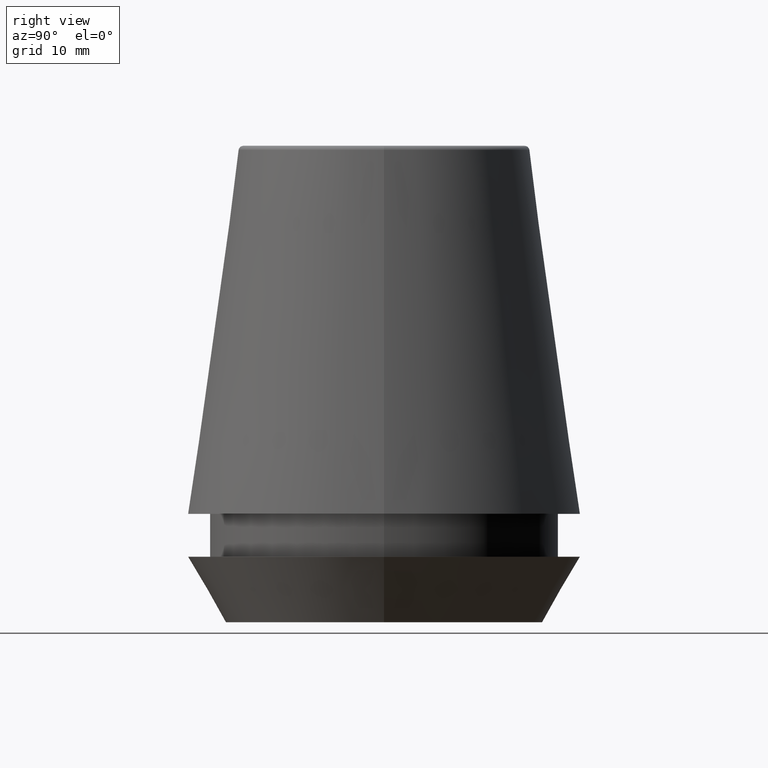
[diagram: clean part render]
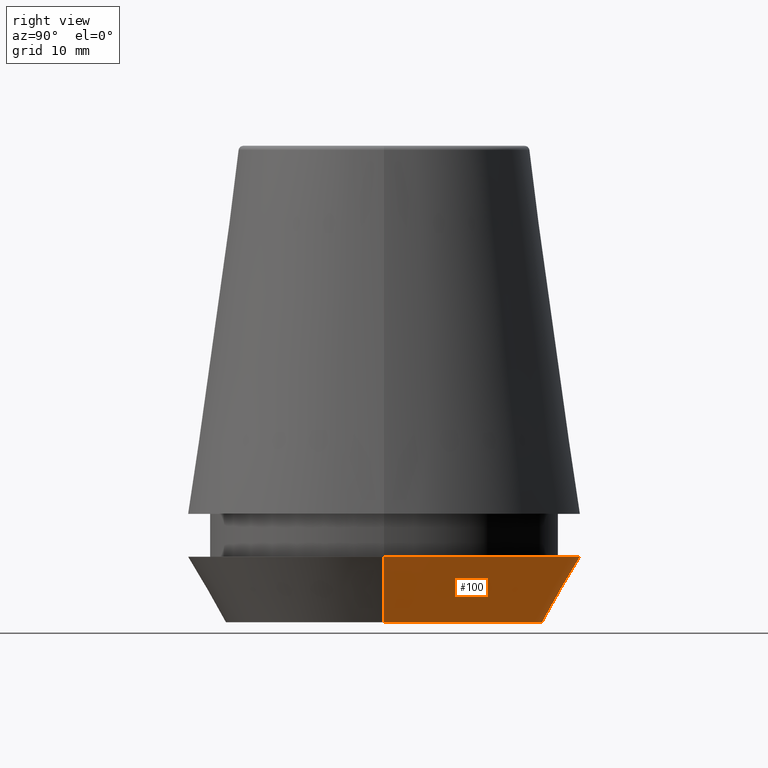
[diagram: same view with one face highlighted and labeled with its STEP entity id]
A machine part, right view. The second image highlights one B-rep face of the part: STEP entity #100.
In plain terms, the highlighted conical surface has half-angle 30 deg.
Its self-contained STEP definition (entity closure, byte-faithful):
#22 = DIRECTION ( 'NONE',  ( -0.0000000000000000000, -0.0000000000000000000, 1.000000000000000000 ) ) ;
#26 = EDGE_CURVE ( 'NONE', #257, #118, #202, .T. ) ;
#28 = CARTESIAN_POINT ( 'NONE',  ( 0.0000000000000000000, 0.0000000000000000000, 0.0000000000000000000 ) ) ;
#36 = ORIENTED_EDGE ( 'NONE', *, *, #235, .F. ) ;
#76 = ORIENTED_EDGE ( 'NONE', *, *, #160, .F. ) ;
#81 = ORIENTED_EDGE ( 'NONE', *, *, #228, .T. ) ;
#100 = ADVANCED_FACE ( 'NONE', ( #171 ), #279, .T. ) ;
#111 = DIRECTION ( 'NONE',  ( 1.000000000000000000, 0.0000000000000000000, 0.0000000000000000000 ) ) ;
#118 = VERTEX_POINT ( 'NONE', #355 ) ;
#139 = CARTESIAN_POINT ( 'NONE',  ( -13.32457351945710200, 1.826228424826902600E-015, 0.0000000000000000000 ) ) ;
#156 = DIRECTION ( 'NONE',  ( -0.4999999999999947300, 6.123233995736700700E-017, 0.8660254037844418200 ) ) ;
#160 = EDGE_CURVE ( 'NONE', #292, #234, #232, .T. ) ;
#163 = EDGE_LOOP ( 'NONE', ( #81, #237, #36, #76 ) ) ;
#171 = FACE_OUTER_BOUND ( 'NONE', #163, .T. ) ;
#187 = DIRECTION ( 'NONE',  ( 1.000000000000000000, 0.0000000000000000000, 0.0000000000000000000 ) ) ;
#191 = CARTESIAN_POINT ( 'NONE',  ( -13.32457351945710200, 1.631789631060672300E-015, 0.0000000000000000000 ) ) ;
#202 = LINE ( 'NONE', #191, #346 ) ;
#203 = AXIS2_PLACEMENT_3D ( 'NONE', #28, #331, #111 ) ;
#213 = CARTESIAN_POINT ( 'NONE',  ( 13.32457351945710200, 0.0000000000000000000, 0.0000000000000000000 ) ) ;
#216 = DIRECTION ( 'NONE',  ( -0.0000000000000000000, -0.0000000000000000000, 1.000000000000000000 ) ) ;
#228 = EDGE_CURVE ( 'NONE', #292, #257, #253, .T. ) ;
#232 = LINE ( 'NONE', #213, #320 ) ;
#234 = VERTEX_POINT ( 'NONE', #266 ) ;
#235 = EDGE_CURVE ( 'NONE', #234, #118, #333, .T. ) ;
#237 = ORIENTED_EDGE ( 'NONE', *, *, #26, .T. ) ;
#253 = CIRCLE ( 'NONE', #203, 13.32457351945710200 ) ;
#257 = VERTEX_POINT ( 'NONE', #139 ) ;
#266 = CARTESIAN_POINT ( 'NONE',  ( 16.50000000000000000, 0.0000000000000000000, 5.500000000000005300 ) ) ;
#268 = CARTESIAN_POINT ( 'NONE',  ( 0.0000000000000000000, 0.0000000000000000000, 0.0000000000000000000 ) ) ;
#279 = CONICAL_SURFACE ( 'NONE', #358, 13.32457351945710200, 0.5235987755982927100 ) ;
#292 = VERTEX_POINT ( 'NONE', #306 ) ;
#306 = CARTESIAN_POINT ( 'NONE',  ( 13.32457351945710200, 0.0000000000000000000, 0.0000000000000000000 ) ) ;
#320 = VECTOR ( 'NONE', #352, 999.9999999999998900 ) ;
#331 = DIRECTION ( 'NONE',  ( -0.0000000000000000000, -0.0000000000000000000, 1.000000000000000000 ) ) ;
#333 = CIRCLE ( 'NONE', #362, 16.50000000000000000 ) ;
#346 = VECTOR ( 'NONE', #156, 999.9999999999998900 ) ;
#352 = DIRECTION ( 'NONE',  ( 0.4999999999999947300, 0.0000000000000000000, 0.8660254037844418200 ) ) ;
#355 = CARTESIAN_POINT ( 'NONE',  ( -16.50000000000000000, 2.020667218593133100E-015, 5.500000000000005300 ) ) ;
#358 = AXIS2_PLACEMENT_3D ( 'NONE', #268, #216, #187 ) ;
#362 = AXIS2_PLACEMENT_3D ( 'NONE', #373, #22, #376 ) ;
#373 = CARTESIAN_POINT ( 'NONE',  ( 0.0000000000000000000, 0.0000000000000000000, 5.500000000000005300 ) ) ;
#376 = DIRECTION ( 'NONE',  ( 1.000000000000000000, 0.0000000000000000000, 0.0000000000000000000 ) ) ;